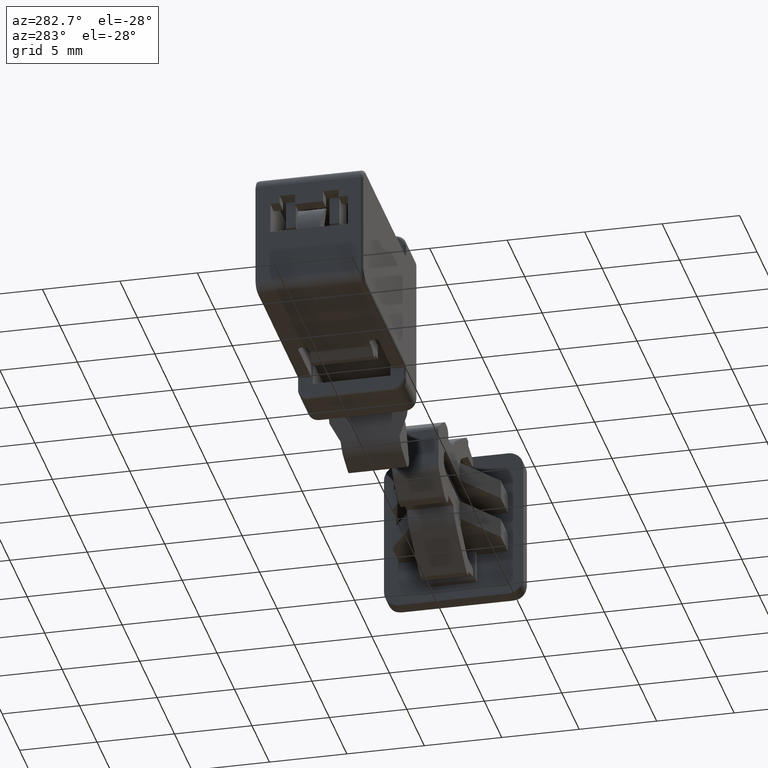
[diagram: clean part render]
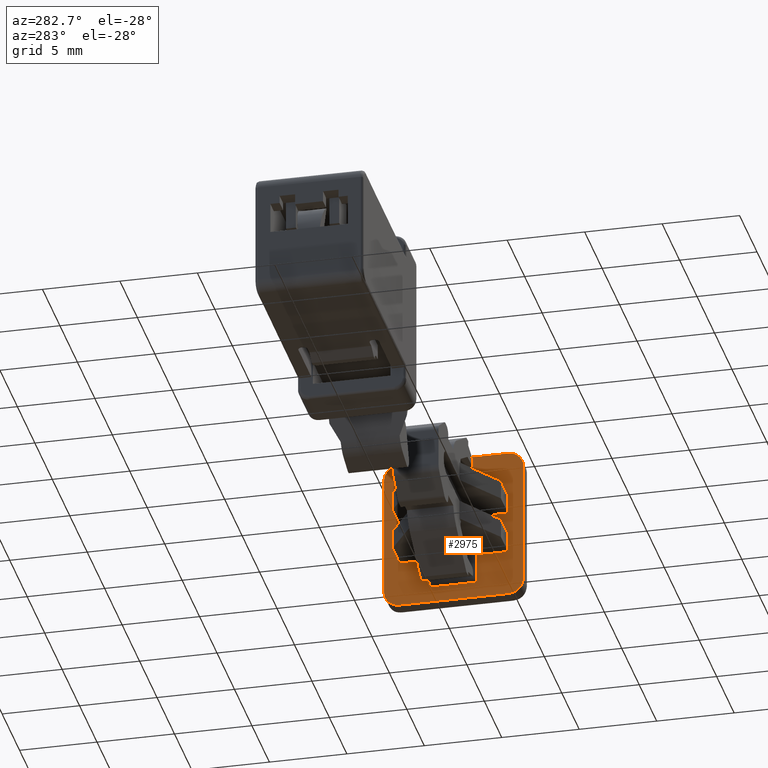
[diagram: same view with one face highlighted and labeled with its STEP entity id]
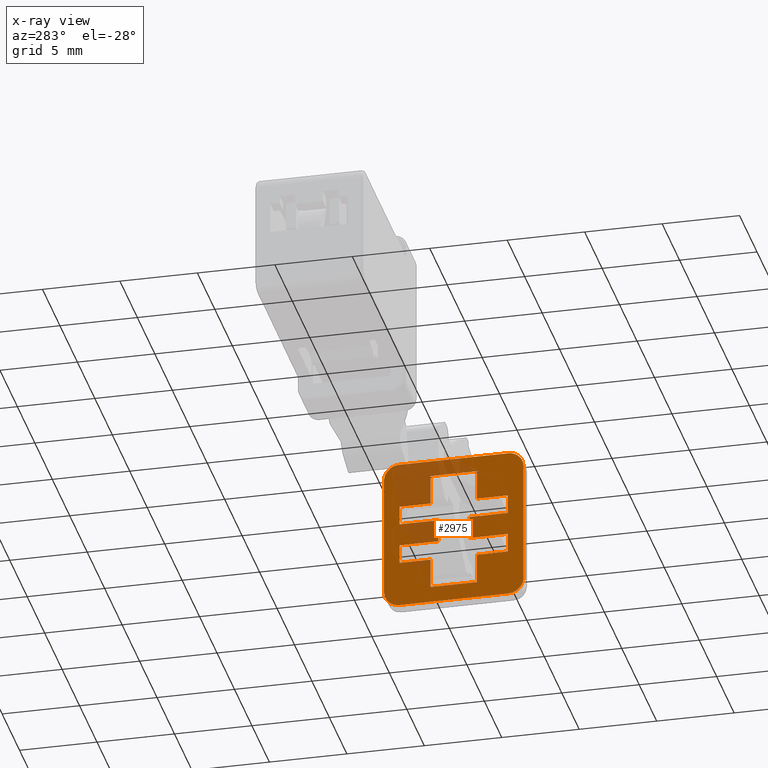
[diagram: x-ray of the same camera — body ghosted, the highlighted face saturated]
A machine part, auxiliary view. The second image highlights one B-rep face of the part: STEP entity #2975.
The next image is the same camera in x-ray: the body ghosted, the highlighted face saturated — about 23% of this face is hidden behind the body in this view.
In plain terms, the highlighted face is a freeform B-spline surface patch.
Its self-contained STEP definition (entity closure, byte-faithful):
#121=CARTESIAN_POINT('',(26.233476587557899,-3.499999999999950,-4.999999999999901));
#122=VERTEX_POINT('',#121);
#157=CARTESIAN_POINT('',(26.233476587557899,-4.499999999999949,-3.999999999999901));
#158=VERTEX_POINT('',#157);
#164=CARTESIAN_POINT('',(26.233476587557899,-3.499999999999950,-4.999999999999901));
#165=CARTESIAN_POINT('',(26.233476587557895,-4.499999999999950,-4.999999999999901));
#166=CARTESIAN_POINT('',(26.233476587557899,-4.499999999999950,-3.999999999999901));
#174=(BOUNDED_CURVE()B_SPLINE_CURVE(2,(#164,#165,#166),.UNSPECIFIED.,.F.,.U.)CURVE()GEOMETRIC_REPRESENTATION_ITEM()QUASI_UNIFORM_CURVE()RATIONAL_B_SPLINE_CURVE((1.0,0.707106781186548,1.0))REPRESENTATION_ITEM(''));
#175=EDGE_CURVE('',#122,#158,#174,.T.);
#257=CARTESIAN_POINT('',(26.233476587557899,-4.499999999999949,4.0));
#258=VERTEX_POINT('',#257);
#293=CARTESIAN_POINT('',(26.233476587557899,-3.499999999999950,5.0));
#294=VERTEX_POINT('',#293);
#300=CARTESIAN_POINT('',(26.233476587557899,-4.499999999999950,4.0));
#301=CARTESIAN_POINT('',(26.233476587557895,-4.499999999999950,5.000000000000001));
#302=CARTESIAN_POINT('',(26.233476587557899,-3.499999999999950,5.0));
#310=(BOUNDED_CURVE()B_SPLINE_CURVE(2,(#300,#301,#302),.UNSPECIFIED.,.F.,.U.)CURVE()GEOMETRIC_REPRESENTATION_ITEM()QUASI_UNIFORM_CURVE()RATIONAL_B_SPLINE_CURVE((1.0,0.707106781186548,1.0))REPRESENTATION_ITEM(''));
#311=EDGE_CURVE('',#258,#294,#310,.T.);
#330=CARTESIAN_POINT('',(26.233476587557899,3.499999999999950,5.0));
#331=VERTEX_POINT('',#330);
#332=CARTESIAN_POINT('',(26.233476587557899,4.499999999999949,4.0));
#333=VERTEX_POINT('',#332);
#334=CARTESIAN_POINT('',(26.233476587557899,3.500000000000000,5.0));
#335=CARTESIAN_POINT('',(26.233476587557895,3.914213562373080,5.0));
#336=CARTESIAN_POINT('',(26.233476587557899,4.207106781186530,4.707106781186565));
#337=CARTESIAN_POINT('',(26.233476587557895,4.500000000000000,4.414213562373109));
#338=CARTESIAN_POINT('',(26.233476587557899,4.500000000000001,4.0));
#346=(BOUNDED_CURVE()B_SPLINE_CURVE(2,(#334,#335,#336,#337,#338),.UNSPECIFIED.,.F.,.U.)B_SPLINE_CURVE_WITH_KNOTS((3,2,3),(0.0,0.500000000000000,1.0),.UNSPECIFIED.)CURVE()GEOMETRIC_REPRESENTATION_ITEM()RATIONAL_B_SPLINE_CURVE((1.0,0.923879532511292,1.0,0.923879532511292,1.0))REPRESENTATION_ITEM(''));
#347=EDGE_CURVE('',#331,#333,#346,.T.);
#485=CARTESIAN_POINT('',(26.233476587557899,3.499999999999950,-4.999999999999901));
#486=VERTEX_POINT('',#485);
#492=CARTESIAN_POINT('',(26.233476587557899,4.499999999999949,-3.999999999999901));
#493=VERTEX_POINT('',#492);
#494=CARTESIAN_POINT('',(26.233476587557899,4.500000000000001,-3.999999999999901));
#495=CARTESIAN_POINT('',(26.233476587557895,4.500000000000002,-4.999999999999901));
#496=CARTESIAN_POINT('',(26.233476587557899,3.500000000000000,-4.999999999999901));
#504=(BOUNDED_CURVE()B_SPLINE_CURVE(2,(#494,#495,#496),.UNSPECIFIED.,.F.,.U.)CURVE()GEOMETRIC_REPRESENTATION_ITEM()QUASI_UNIFORM_CURVE()RATIONAL_B_SPLINE_CURVE((1.0,0.707106781186548,1.0))REPRESENTATION_ITEM(''));
#505=EDGE_CURVE('',#493,#486,#504,.T.);
#614=CARTESIAN_POINT('',(26.233476587557899,1.0,0.750000000000000));
#615=VERTEX_POINT('',#614);
#621=CARTESIAN_POINT('',(26.233476587557899,1.0,-0.749999999999901));
#622=VERTEX_POINT('',#621);
#623=CARTESIAN_POINT('',(26.233476587557899,1.0,0.750000000000000));
#624=CARTESIAN_POINT('',(26.233476587557899,1.0,-0.749999999999901));
#625=QUASI_UNIFORM_CURVE('',1,(#623,#624),.UNSPECIFIED.,.F.,.U.);
#626=EDGE_CURVE('',#615,#622,#625,.T.);
#650=CARTESIAN_POINT('',(26.233476587557899,3.499999999999950,0.750000000000000));
#651=VERTEX_POINT('',#650);
#657=CARTESIAN_POINT('',(26.233476587557899,3.499999999999950,0.750000000000000));
#658=CARTESIAN_POINT('',(26.233476587557899,1.0,0.750000000000000));
#659=QUASI_UNIFORM_CURVE('',1,(#657,#658),.UNSPECIFIED.,.F.,.U.);
#660=EDGE_CURVE('',#651,#615,#659,.T.);
#705=CARTESIAN_POINT('',(26.233476587557899,3.499999999999950,-0.749999999999901));
#706=VERTEX_POINT('',#705);
#707=CARTESIAN_POINT('',(26.233476587557899,3.499999999999950,-0.749999999999901));
#708=CARTESIAN_POINT('',(26.233476587557899,1.0,-0.749999999999901));
#709=QUASI_UNIFORM_CURVE('',1,(#707,#708),.UNSPECIFIED.,.F.,.U.);
#710=EDGE_CURVE('',#706,#622,#709,.T.);
#783=CARTESIAN_POINT('',(26.233476587557899,-1.0,-0.749999999999901));
#784=VERTEX_POINT('',#783);
#790=CARTESIAN_POINT('',(26.233476587557899,-1.0,0.750000000000000));
#791=VERTEX_POINT('',#790);
#792=CARTESIAN_POINT('',(26.233476587557899,-1.0,0.750000000000000));
#793=CARTESIAN_POINT('',(26.233476587557899,-1.0,-0.749999999999901));
#794=QUASI_UNIFORM_CURVE('',1,(#792,#793),.UNSPECIFIED.,.F.,.U.);
#795=EDGE_CURVE('',#791,#784,#794,.T.);
#832=CARTESIAN_POINT('',(26.233476587557899,-3.499999999999950,0.750000000000000));
#833=VERTEX_POINT('',#832);
#834=CARTESIAN_POINT('',(26.233476587557899,-3.499999999999950,0.750000000000000));
#835=CARTESIAN_POINT('',(26.233476587557899,-1.0,0.750000000000000));
#836=QUASI_UNIFORM_CURVE('',1,(#834,#835),.UNSPECIFIED.,.F.,.U.);
#837=EDGE_CURVE('',#833,#791,#836,.T.);
#861=CARTESIAN_POINT('',(26.233476587557899,-3.499999999999950,-0.749999999999901));
#862=VERTEX_POINT('',#861);
#868=CARTESIAN_POINT('',(26.233476587557899,-3.499999999999950,-0.749999999999901));
#869=CARTESIAN_POINT('',(26.233476587557899,-1.0,-0.749999999999901));
#870=QUASI_UNIFORM_CURVE('',1,(#868,#869),.UNSPECIFIED.,.F.,.U.);
#871=EDGE_CURVE('',#862,#784,#870,.T.);
#2333=CARTESIAN_POINT('',(26.233476587557899,-1.499999999999946,-3.949999999999906));
#2334=VERTEX_POINT('',#2333);
#2335=CARTESIAN_POINT('',(26.233476587557899,-1.500000000000000,-1.999999999999890));
#2336=VERTEX_POINT('',#2335);
#2337=CARTESIAN_POINT('',(26.233476587557899,-1.499999999999946,-3.949999999999906));
#2338=CARTESIAN_POINT('',(26.233476587557899,-1.500000000000000,-1.999999999999890));
#2339=QUASI_UNIFORM_CURVE('',1,(#2337,#2338),.UNSPECIFIED.,.F.,.U.);
#2340=EDGE_CURVE('',#2334,#2336,#2339,.T.);
#2384=CARTESIAN_POINT('',(26.233476587557899,1.500000000000000,-1.999999999999890));
#2385=VERTEX_POINT('',#2384);
#2393=CARTESIAN_POINT('',(26.233476587557899,1.499999999999946,-3.949999999999906));
#2394=VERTEX_POINT('',#2393);
#2395=CARTESIAN_POINT('',(26.233476587557899,1.499999999999946,-3.949999999999906));
#2396=CARTESIAN_POINT('',(26.233476587557899,1.500000000000000,-1.999999999999890));
#2397=QUASI_UNIFORM_CURVE('',1,(#2395,#2396),.UNSPECIFIED.,.F.,.U.);
#2398=EDGE_CURVE('',#2394,#2385,#2397,.T.);
#2442=CARTESIAN_POINT('',(26.233476587557899,1.499999999999946,-3.949999999999906));
#2443=CARTESIAN_POINT('',(26.233476587557899,-1.499999999999946,-3.949999999999906));
#2444=QUASI_UNIFORM_CURVE('',1,(#2442,#2443),.UNSPECIFIED.,.F.,.U.);
#2445=EDGE_CURVE('',#2394,#2334,#2444,.T.);
#2496=CARTESIAN_POINT('',(26.233476587557899,-1.499999999999946,3.950000000000105));
#2497=VERTEX_POINT('',#2496);
#2505=CARTESIAN_POINT('',(26.233476587557899,1.499999999999946,3.950000000000105));
#2506=VERTEX_POINT('',#2505);
#2507=CARTESIAN_POINT('',(26.233476587557899,1.499999999999946,3.950000000000105));
#2508=CARTESIAN_POINT('',(26.233476587557899,-1.499999999999946,3.950000000000105));
#2509=QUASI_UNIFORM_CURVE('',1,(#2507,#2508),.UNSPECIFIED.,.F.,.U.);
#2510=EDGE_CURVE('',#2506,#2497,#2509,.T.);
#2568=CARTESIAN_POINT('',(26.233476587557899,-1.500000000000000,2.0));
#2569=VERTEX_POINT('',#2568);
#2575=CARTESIAN_POINT('',(26.233476587557899,-1.500000000000000,2.0));
#2576=CARTESIAN_POINT('',(26.233476587557899,-1.499999999999946,3.950000000000105));
#2577=QUASI_UNIFORM_CURVE('',1,(#2575,#2576),.UNSPECIFIED.,.F.,.U.);
#2578=EDGE_CURVE('',#2569,#2497,#2577,.T.);
#2603=CARTESIAN_POINT('',(26.233476587557899,1.500000000000000,2.0));
#2604=VERTEX_POINT('',#2603);
#2605=CARTESIAN_POINT('',(26.233476587557899,1.500000000000000,2.0));
#2606=CARTESIAN_POINT('',(26.233476587557899,1.499999999999946,3.950000000000105));
#2607=QUASI_UNIFORM_CURVE('',1,(#2605,#2606),.UNSPECIFIED.,.F.,.U.);
#2608=EDGE_CURVE('',#2604,#2506,#2607,.T.);
#2683=CARTESIAN_POINT('',(26.233476587557899,3.500000000000000,2.0));
#2684=VERTEX_POINT('',#2683);
#2690=CARTESIAN_POINT('',(26.233476587557899,3.499999999999950,0.750000000000000));
#2691=CARTESIAN_POINT('',(26.233476587557899,3.500000000000000,2.0));
#2692=QUASI_UNIFORM_CURVE('',1,(#2690,#2691),.UNSPECIFIED.,.F.,.U.);
#2693=EDGE_CURVE('',#651,#2684,#2692,.T.);
#2704=CARTESIAN_POINT('',(26.233476587557899,-3.499999999999950,2.0));
#2705=VERTEX_POINT('',#2704);
#2706=CARTESIAN_POINT('',(26.233476587557899,-3.499999999999950,0.750000000000000));
#2707=CARTESIAN_POINT('',(26.233476587557899,-3.499999999999950,2.0));
#2708=QUASI_UNIFORM_CURVE('',1,(#2706,#2707),.UNSPECIFIED.,.F.,.U.);
#2709=EDGE_CURVE('',#833,#2705,#2708,.T.);
#2791=CARTESIAN_POINT('',(26.233476587557899,-4.499999999999949,-3.999999999999901));
#2792=CARTESIAN_POINT('',(26.233476587557899,-4.499999999999949,4.0));
#2793=QUASI_UNIFORM_CURVE('',1,(#2791,#2792),.UNSPECIFIED.,.F.,.U.);
#2794=EDGE_CURVE('',#158,#258,#2793,.T.);
#2807=CARTESIAN_POINT('',(26.233476587557899,3.499999999999950,-4.999999999999901));
#2808=CARTESIAN_POINT('',(26.233476587557899,-3.499999999999950,-4.999999999999901));
#2809=QUASI_UNIFORM_CURVE('',1,(#2807,#2808),.UNSPECIFIED.,.F.,.U.);
#2810=EDGE_CURVE('',#486,#122,#2809,.T.);
#2833=CARTESIAN_POINT('',(26.233476587557899,3.499999999999950,5.0));
#2834=CARTESIAN_POINT('',(26.233476587557899,-3.499999999999950,5.0));
#2835=QUASI_UNIFORM_CURVE('',1,(#2833,#2834),.UNSPECIFIED.,.F.,.U.);
#2836=EDGE_CURVE('',#331,#294,#2835,.T.);
#2849=CARTESIAN_POINT('',(26.233476587557899,4.499999999999949,-3.999999999999901));
#2850=CARTESIAN_POINT('',(26.233476587557899,4.499999999999949,4.0));
#2851=QUASI_UNIFORM_CURVE('',1,(#2849,#2850),.UNSPECIFIED.,.F.,.U.);
#2852=EDGE_CURVE('',#493,#333,#2851,.T.);
#2910=CARTESIAN_POINT('',(26.233476587557899,-4.949549982556200,5.499499980618055));
#2911=CARTESIAN_POINT('',(26.233476587557899,-4.949549982556200,-5.499500248838857));
#2912=CARTESIAN_POINT('',(26.233476587557899,4.949550223955010,5.499499980618055));
#2913=CARTESIAN_POINT('',(26.233476587557899,4.949550223955010,-5.499500248838857));
#2914=B_SPLINE_SURFACE_WITH_KNOTS('',1,1,((#2910,#2912),(#2911,#2913)),.UNSPECIFIED.,.F.,.F.,.U.,(2,2),(2,2),(0.0,10.999000229456909),(0.0,9.899100206511211),.UNSPECIFIED.);
#2915=ORIENTED_EDGE('',*,*,#2852,.F.);
#2916=ORIENTED_EDGE('',*,*,#505,.T.);
#2917=ORIENTED_EDGE('',*,*,#2810,.T.);
#2918=ORIENTED_EDGE('',*,*,#175,.T.);
#2919=ORIENTED_EDGE('',*,*,#2794,.T.);
#2920=ORIENTED_EDGE('',*,*,#311,.T.);
#2921=ORIENTED_EDGE('',*,*,#2836,.F.);
#2922=ORIENTED_EDGE('',*,*,#347,.T.);
#2923=EDGE_LOOP('',(#2915,#2916,#2917,#2918,#2919,#2920,#2921,#2922));
#2924=FACE_OUTER_BOUND('',#2923,.T.);
#2925=CARTESIAN_POINT('',(26.233476587557899,3.500000000000060,-1.999999999999890));
#2926=VERTEX_POINT('',#2925);
#2927=CARTESIAN_POINT('',(26.233476587557899,3.500000000000060,-1.999999999999890));
#2928=CARTESIAN_POINT('',(26.233476587557899,3.499999999999950,-0.749999999999901));
#2929=QUASI_UNIFORM_CURVE('',1,(#2927,#2928),.UNSPECIFIED.,.F.,.U.);
#2930=EDGE_CURVE('',#2926,#706,#2929,.T.);
#2931=ORIENTED_EDGE('',*,*,#2930,.T.);
#2932=ORIENTED_EDGE('',*,*,#710,.T.);
#2933=ORIENTED_EDGE('',*,*,#626,.F.);
#2934=ORIENTED_EDGE('',*,*,#660,.F.);
#2935=ORIENTED_EDGE('',*,*,#2693,.T.);
#2936=CARTESIAN_POINT('',(26.233476587557899,1.500000000000000,2.0));
#2937=CARTESIAN_POINT('',(26.233476587557899,3.500000000000000,2.0));
#2938=QUASI_UNIFORM_CURVE('',1,(#2936,#2937),.UNSPECIFIED.,.F.,.U.);
#2939=EDGE_CURVE('',#2604,#2684,#2938,.T.);
#2940=ORIENTED_EDGE('',*,*,#2939,.F.);
#2941=ORIENTED_EDGE('',*,*,#2608,.T.);
#2942=ORIENTED_EDGE('',*,*,#2510,.T.);
#2943=ORIENTED_EDGE('',*,*,#2578,.F.);
#2944=CARTESIAN_POINT('',(26.233476587557899,-3.499999999999950,2.0));
#2945=CARTESIAN_POINT('',(26.233476587557899,-1.500000000000000,2.0));
#2946=QUASI_UNIFORM_CURVE('',1,(#2944,#2945),.UNSPECIFIED.,.F.,.U.);
#2947=EDGE_CURVE('',#2705,#2569,#2946,.T.);
#2948=ORIENTED_EDGE('',*,*,#2947,.F.);
#2949=ORIENTED_EDGE('',*,*,#2709,.F.);
#2950=ORIENTED_EDGE('',*,*,#837,.T.);
#2951=ORIENTED_EDGE('',*,*,#795,.T.);
#2952=ORIENTED_EDGE('',*,*,#871,.F.);
#2953=CARTESIAN_POINT('',(26.233476587557899,-3.499999999999950,-1.999999999999890));
#2954=VERTEX_POINT('',#2953);
#2955=CARTESIAN_POINT('',(26.233476587557899,-3.499999999999950,-1.999999999999890));
#2956=CARTESIAN_POINT('',(26.233476587557899,-3.499999999999950,-0.749999999999901));
#2957=QUASI_UNIFORM_CURVE('',1,(#2955,#2956),.UNSPECIFIED.,.F.,.U.);
#2958=EDGE_CURVE('',#2954,#862,#2957,.T.);
#2959=ORIENTED_EDGE('',*,*,#2958,.F.);
#2960=CARTESIAN_POINT('',(26.233476587557899,-3.499999999999950,-1.999999999999890));
#2961=CARTESIAN_POINT('',(26.233476587557899,-1.500000000000000,-1.999999999999890));
#2962=QUASI_UNIFORM_CURVE('',1,(#2960,#2961),.UNSPECIFIED.,.F.,.U.);
#2963=EDGE_CURVE('',#2954,#2336,#2962,.T.);
#2964=ORIENTED_EDGE('',*,*,#2963,.T.);
#2965=ORIENTED_EDGE('',*,*,#2340,.F.);
#2966=ORIENTED_EDGE('',*,*,#2445,.F.);
#2967=ORIENTED_EDGE('',*,*,#2398,.T.);
#2968=CARTESIAN_POINT('',(26.233476587557899,1.500000000000000,-1.999999999999890));
#2969=CARTESIAN_POINT('',(26.233476587557899,3.500000000000060,-1.999999999999890));
#2970=QUASI_UNIFORM_CURVE('',1,(#2968,#2969),.UNSPECIFIED.,.F.,.U.);
#2971=EDGE_CURVE('',#2385,#2926,#2970,.T.);
#2972=ORIENTED_EDGE('',*,*,#2971,.T.);
#2973=EDGE_LOOP('',(#2931,#2932,#2933,#2934,#2935,#2940,#2941,#2942,#2943,#2948,#2949,#2950,#2951,#2952,#2959,#2964,#2965,#2966,#2967,#2972));
#2974=FACE_BOUND('',#2973,.T.);
#2975=ADVANCED_FACE('',(#2924,#2974),#2914,.F.);